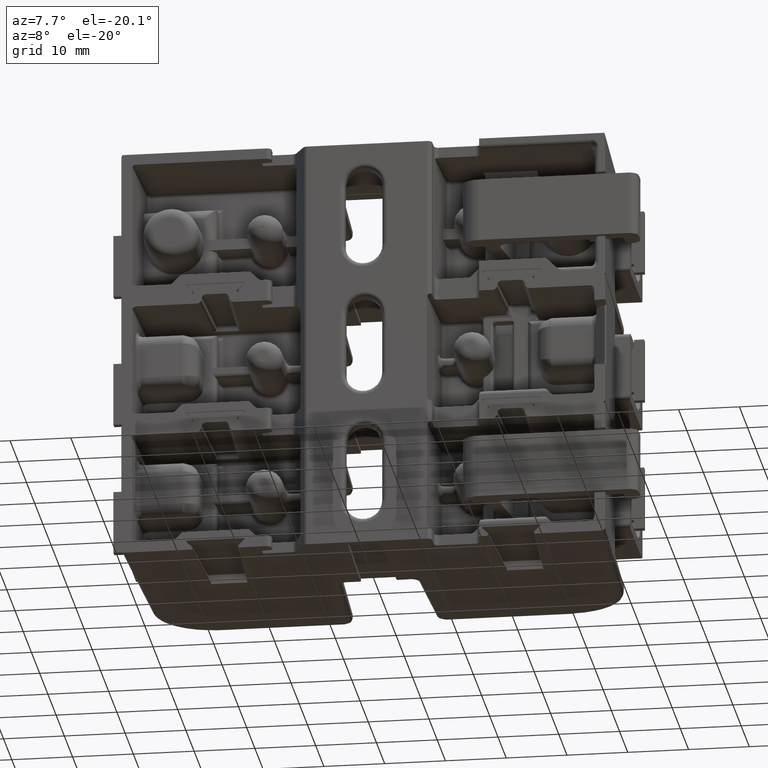
[diagram: clean part render]
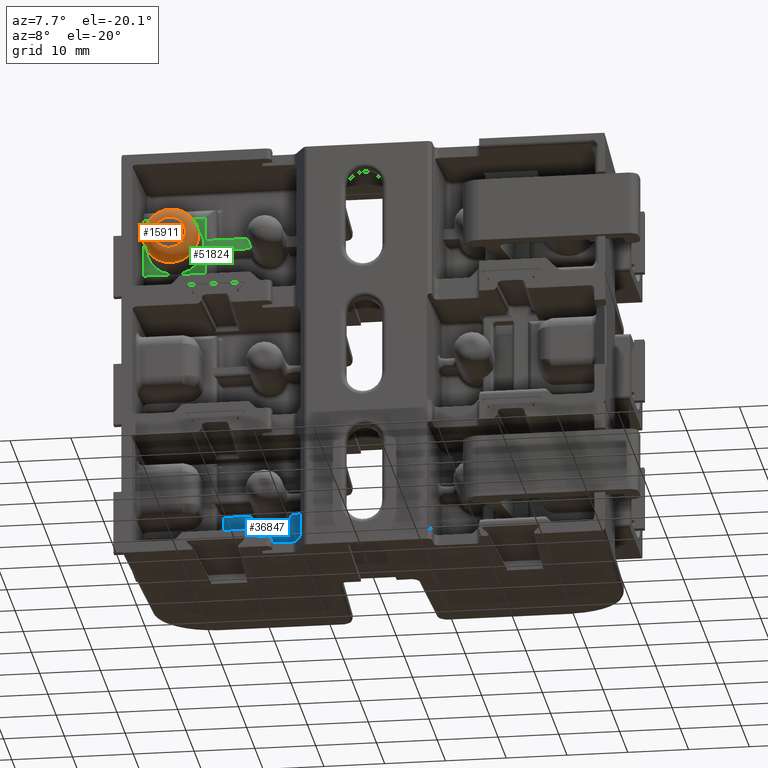
[diagram: same view with three faces highlighted in distinct colors, each labeled with its STEP entity id]
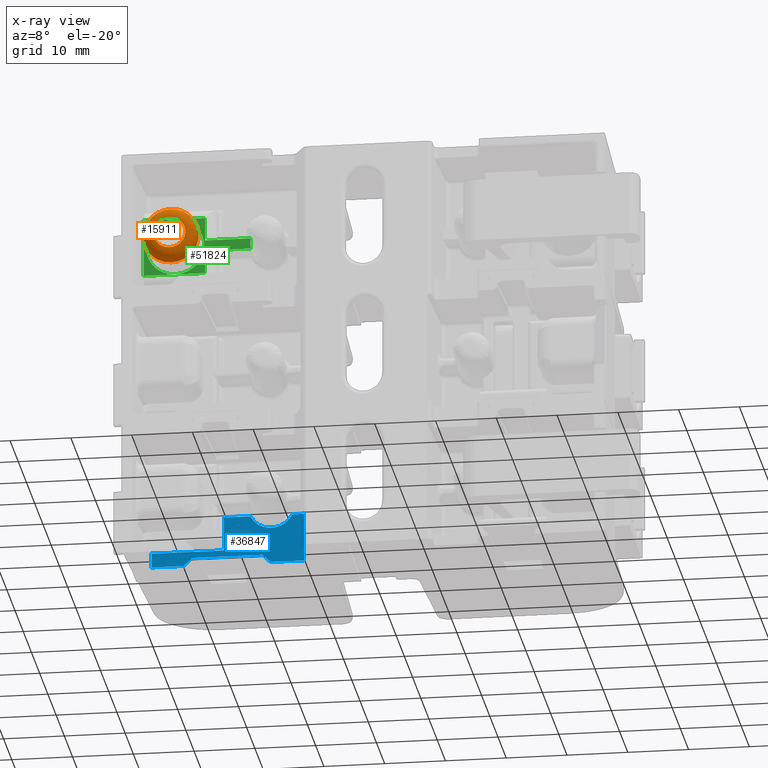
[diagram: x-ray of the same camera — body ghosted, the three highlighted faces saturated]
A machine part, auxiliary view with three faces highlighted in distinct colors.
The next image is the same camera in x-ray (body ghosted, the three faces saturated) — at least one of them is partly hidden behind the body in this view.
Their STEP definitions:

[orange] entity #15911 — the highlighted toroidal blend (fillet) surface has major radius 2.6279 mm and minor (blend) radius 1.9558 mm.
#4310 = VERTEX_POINT ( 'NONE', #10485 ) ;
#5301 = EDGE_LOOP ( 'NONE', ( #20679 ) ) ;
#10485 = CARTESIAN_POINT ( 'NONE',  ( -1.276500000000000000, 0.1550000000000000000, -0.1034623631186609900 ) ) ;
#11961 = EDGE_CURVE ( 'NONE', #39591, #39591, #139369, .T. ) ;
#15362 = FACE_OUTER_BOUND ( 'NONE', #5301, .T. ) ;
#15911 = ADVANCED_FACE ( 'NONE', ( #15362, #135718 ), #91410, .T. ) ;
#20679 = ORIENTED_EDGE ( 'NONE', *, *, #63379, .F. ) ;
#39591 = VERTEX_POINT ( 'NONE', #61374 ) ;
#40723 = DIRECTION ( 'NONE',  ( -0.0000000000000000000, 1.000000000000000000, -0.0000000000000000000 ) ) ;
#46040 = DIRECTION ( 'NONE',  ( 0.0000000000000000000, -1.000000000000000000, 0.0000000000000000000 ) ) ;
#54492 = CARTESIAN_POINT ( 'NONE',  ( -1.276500000000000000, 0.2319999999999999800, 3.414809992080329000E-017 ) ) ;
#61374 = CARTESIAN_POINT ( 'NONE',  ( -1.276500000000000000, 0.2293127387539074500, -0.1804154567991313500 ) ) ;
#63379 = EDGE_CURVE ( 'NONE', #4310, #4310, #68133, .T. ) ;
#67905 = ORIENTED_EDGE ( 'NONE', *, *, #11961, .F. ) ;
#68133 = CIRCLE ( 'NONE', #140704, 0.1034623631186610300 ) ;
#68909 = EDGE_LOOP ( 'NONE', ( #67905 ) ) ;
#77725 = DIRECTION ( 'NONE',  ( 0.0000000000000000000, 0.0000000000000000000, -1.000000000000000000 ) ) ;
#91410 = TOROIDAL_SURFACE ( 'NONE', #110239, 0.1034623631186610300, 0.07699999999999998500 ) ;
#108609 = CARTESIAN_POINT ( 'NONE',  ( -1.276500000000000000, 0.2293127387539074500, 3.414809992080329000E-017 ) ) ;
#110239 = AXIS2_PLACEMENT_3D ( 'NONE', #54492, #145548, #77725 ) ;
#113958 = CARTESIAN_POINT ( 'NONE',  ( -1.276500000000000000, 0.1550000000000000000, 3.414809992080329000E-017 ) ) ;
#119966 = DIRECTION ( 'NONE',  ( 0.0000000000000000000, 0.0000000000000000000, -1.000000000000000000 ) ) ;
#125263 = DIRECTION ( 'NONE',  ( 0.0000000000000000000, 0.0000000000000000000, -1.000000000000000000 ) ) ;
#135718 = FACE_OUTER_BOUND ( 'NONE', #68909, .T. ) ;
#135948 = AXIS2_PLACEMENT_3D ( 'NONE', #108609, #40723, #119966 ) ;
#139369 = CIRCLE ( 'NONE', #135948, 0.1804154567991313700 ) ;
#140704 = AXIS2_PLACEMENT_3D ( 'NONE', #113958, #46040, #125263 ) ;
#145548 = DIRECTION ( 'NONE',  ( 0.0000000000000000000, -1.000000000000000000, 0.0000000000000000000 ) ) ;

[blue] entity #36847 — the highlighted planar face has unit normal (0, 1, 0).
#174 = LINE ( 'NONE', #125862, #117012 ) ;
#1980 = ORIENTED_EDGE ( 'NONE', *, *, #107957, .T. ) ;
#5154 = VERTEX_POINT ( 'NONE', #103558 ) ;
#5723 = LINE ( 'NONE', #104663, #9285 ) ;
#6226 = AXIS2_PLACEMENT_3D ( 'NONE', #91758, #24003, #103199 ) ;
#7525 = LINE ( 'NONE', #42583, #64077 ) ;
#7534 = EDGE_CURVE ( 'NONE', #24223, #119918, #84776, .T. ) ;
#8027 = VECTOR ( 'NONE', #51499, 39.37007874015748900 ) ;
#8367 = ORIENTED_EDGE ( 'NONE', *, *, #28307, .T. ) ;
#8763 = DIRECTION ( 'NONE',  ( 0.7071067811865511300, -0.0000000000000000000, -0.7071067811865438000 ) ) ;
#9285 = VECTOR ( 'NONE', #116113, 39.37007874015748100 ) ;
#9534 = CARTESIAN_POINT ( 'NONE',  ( -1.447494528120847100, 0.5700000000000000600, -2.040499999999999800 ) ) ;
#10395 = EDGE_CURVE ( 'NONE', #145373, #24223, #117214, .T. ) ;
#11887 = LINE ( 'NONE', #44234, #41943 ) ;
#12002 = CARTESIAN_POINT ( 'NONE',  ( -1.447581830044576400, 0.5700000000000000600, -2.040501522932451900 ) ) ;
#15864 = VERTEX_POINT ( 'NONE', #9534 ) ;
#15942 = CARTESIAN_POINT ( 'NONE',  ( -0.9790000000000004300, 0.5700000000000000600, -1.814999999999999700 ) ) ;
#23098 = CARTESIAN_POINT ( 'NONE',  ( -0.6780735931288075500, 0.5700000000000000600, -2.133999999999999900 ) ) ;
#24003 = DIRECTION ( 'NONE',  ( 0.0000000000000000000, 1.000000000000000000, 0.0000000000000000000 ) ) ;
#24223 = VERTEX_POINT ( 'NONE', #130828 ) ;
#24448 = DIRECTION ( 'NONE',  ( -1.000000000000000000, 0.0000000000000000000, -0.0000000000000000000 ) ) ;
#24678 = DIRECTION ( 'NONE',  ( 1.000000000000000000, -0.0000000000000000000, 0.0000000000000000000 ) ) ;
#28307 = EDGE_CURVE ( 'NONE', #44278, #144642, #174, .T. ) ;
#30354 = VECTOR ( 'NONE', #46167, 39.37007874015748100 ) ;
#31467 = CARTESIAN_POINT ( 'NONE',  ( -0.6720000000000002600, 0.5700000000000000600, -1.749999999999999600 ) ) ;
#34873 = PLANE ( 'NONE',  #6226 ) ;
#36847 = ADVANCED_FACE ( 'NONE', ( #126125 ), #34873, .F. ) ;
#39892 = CARTESIAN_POINT ( 'NONE',  ( -1.185926406871193400, 0.5700000000000000600, -2.081999999999999900 ) ) ;
#41943 = VECTOR ( 'NONE', #55570, 39.37007874015748100 ) ;
#42583 = CARTESIAN_POINT ( 'NONE',  ( -1.009000000000000300, 0.5700000000000000600, -1.814999999999999700 ) ) ;
#42861 = DIRECTION ( 'NONE',  ( 0.0000000000000000000, 0.0000000000000000000, 1.000000000000000000 ) ) ;
#44234 = CARTESIAN_POINT ( 'NONE',  ( -1.566500000000000400, 0.5700000000000000600, -2.040499999999999800 ) ) ;
#44278 = VERTEX_POINT ( 'NONE', #115584 ) ;
#44330 = ORIENTED_EDGE ( 'NONE', *, *, #114232, .T. ) ;
#44557 = EDGE_CURVE ( 'NONE', #15864, #65699, #134707, .T. ) ;
#46167 = DIRECTION ( 'NONE',  ( 1.000000000000000000, -0.0000000000000000000, -0.0000000000000000000 ) ) ;
#51499 = DIRECTION ( 'NONE',  ( 0.7071067811865455700, -0.0000000000000000000, 0.7071067811865493500 ) ) ;
#55570 = DIRECTION ( 'NONE',  ( -1.000000000000000000, 0.0000000000000000000, 0.0000000000000000000 ) ) ;
#60783 = EDGE_LOOP ( 'NONE', ( #105696, #83499, #1980, #120088, #129181, #145521, #101875, #111124, #92720, #8367, #44330, #145826, #93700 ) ) ;
#61382 = VERTEX_POINT ( 'NONE', #68253 ) ;
#64077 = VECTOR ( 'NONE', #133084, 39.37007874015748100 ) ;
#65699 = VERTEX_POINT ( 'NONE', #74228 ) ;
#68253 = CARTESIAN_POINT ( 'NONE',  ( -1.447581830044576400, 0.5700000000000000600, -2.133999999999999900 ) ) ;
#71450 = EDGE_CURVE ( 'NONE', #93870, #145373, #94801, .T. ) ;
#72255 = EDGE_CURVE ( 'NONE', #89449, #44278, #104886, .T. ) ;
#72310 = CARTESIAN_POINT ( 'NONE',  ( -0.9790000000000003100, 0.5700000000000000600, -1.359000000000000000 ) ) ;
#74228 = CARTESIAN_POINT ( 'NONE',  ( -1.447581830044576400, 0.5700000000000000600, -2.040501522932451900 ) ) ;
#78504 = CARTESIAN_POINT ( 'NONE',  ( -0.4608755018545087600, 0.5700000000000000600, -1.784999999999999700 ) ) ;
#79707 = CARTESIAN_POINT ( 'NONE',  ( -1.447552739746785300, 0.5700000000000001700, -2.040500507695700300 ) ) ;
#81034 = CARTESIAN_POINT ( 'NONE',  ( -0.4120000000000001400, 0.5700000000000000600, -2.133999999999999900 ) ) ;
#82043 = VECTOR ( 'NONE', #124404, 39.37007874015748100 ) ;
#83297 = CARTESIAN_POINT ( 'NONE',  ( -1.237926406871193000, 0.5700000000000000600, -2.133999999999999900 ) ) ;
#83499 = ORIENTED_EDGE ( 'NONE', *, *, #44557, .T. ) ;
#83686 = DIRECTION ( 'NONE',  ( -3.538663204228321000E-016, 0.0000000000000000000, -1.000000000000000000 ) ) ;
#84776 = LINE ( 'NONE', #132886, #111419 ) ;
#85593 = LINE ( 'NONE', #101194, #82043 ) ;
#88406 = EDGE_CURVE ( 'NONE', #124754, #5154, #127861, .T. ) ;
#89449 = VERTEX_POINT ( 'NONE', #140228 ) ;
#90612 = CARTESIAN_POINT ( 'NONE',  ( -1.447523636150463100, 0.5700000000000001700, -2.040500000000000200 ) ) ;
#91758 = CARTESIAN_POINT ( 'NONE',  ( -1.566500000000000400, 0.5700000000000000600, -1.359000000000000000 ) ) ;
#92720 = ORIENTED_EDGE ( 'NONE', *, *, #72255, .T. ) ;
#93700 = ORIENTED_EDGE ( 'NONE', *, *, #88406, .T. ) ;
#93870 = VERTEX_POINT ( 'NONE', #83297 ) ;
#94801 = LINE ( 'NONE', #119422, #8027 ) ;
#95372 = EDGE_CURVE ( 'NONE', #119918, #89449, #116726, .T. ) ;
#96118 = EDGE_CURVE ( 'NONE', #5154, #15864, #11887, .T. ) ;
#96336 = AXIS2_PLACEMENT_3D ( 'NONE', #31467, #110734, #42861 ) ;
#97752 = VECTOR ( 'NONE', #83686, 39.37007874015748100 ) ;
#101194 = CARTESIAN_POINT ( 'NONE',  ( -0.4120000000000001400, 0.5700000000000000600, -2.133999999999999900 ) ) ;
#101356 = VECTOR ( 'NONE', #112791, 39.37007874015748100 ) ;
#101875 = ORIENTED_EDGE ( 'NONE', *, *, #7534, .T. ) ;
#103199 = DIRECTION ( 'NONE',  ( 0.0000000000000000000, -0.0000000000000000000, 1.000000000000000000 ) ) ;
#103558 = CARTESIAN_POINT ( 'NONE',  ( -0.9790000000000005400, 0.5700000000000000600, -2.040499999999999800 ) ) ;
#104663 = CARTESIAN_POINT ( 'NONE',  ( -1.447581830044576400, 0.5700000000000000600, -1.359000000000000000 ) ) ;
#104886 = LINE ( 'NONE', #78504, #101356 ) ;
#105696 = ORIENTED_EDGE ( 'NONE', *, *, #96118, .T. ) ;
#107957 = EDGE_CURVE ( 'NONE', #65699, #61382, #5723, .T. ) ;
#110734 = DIRECTION ( 'NONE',  ( 0.0000000000000000000, 1.000000000000000000, 0.0000000000000000000 ) ) ;
#111124 = ORIENTED_EDGE ( 'NONE', *, *, #95372, .T. ) ;
#111419 = VECTOR ( 'NONE', #8763, 39.37007874015748900 ) ;
#111832 = EDGE_CURVE ( 'NONE', #61382, #93870, #85593, .T. ) ;
#112791 = DIRECTION ( 'NONE',  ( -0.0000000000000000000, -0.0000000000000000000, 1.000000000000000000 ) ) ;
#113972 = CARTESIAN_POINT ( 'NONE',  ( -0.5362603595113056800, 0.5700000000000000600, -1.814999999999999700 ) ) ;
#114074 = CARTESIAN_POINT ( 'NONE',  ( -1.566500000000000400, 0.5700000000000000600, -2.081999999999999900 ) ) ;
#114232 = EDGE_CURVE ( 'NONE', #144642, #146103, #136481, .T. ) ;
#115584 = CARTESIAN_POINT ( 'NONE',  ( -0.4608755018545087600, 0.5700000000000000600, -1.814999999999999700 ) ) ;
#116113 = DIRECTION ( 'NONE',  ( -0.0000000000000000000, -0.0000000000000000000, -1.000000000000000000 ) ) ;
#116726 = LINE ( 'NONE', #81034, #143127 ) ;
#117012 = VECTOR ( 'NONE', #24448, 39.37007874015748100 ) ;
#117214 = LINE ( 'NONE', #114074, #30354 ) ;
#119422 = CARTESIAN_POINT ( 'NONE',  ( -1.014713203435595900, 0.5700000000000000600, -1.910786796564401200 ) ) ;
#119918 = VERTEX_POINT ( 'NONE', #23098 ) ;
#120088 = ORIENTED_EDGE ( 'NONE', *, *, #111832, .T. ) ;
#124332 = CARTESIAN_POINT ( 'NONE',  ( -0.8077396404886947300, 0.5700000000000000600, -1.814999999999999700 ) ) ;
#124404 = DIRECTION ( 'NONE',  ( 1.000000000000000000, -0.0000000000000000000, 0.0000000000000000000 ) ) ;
#124754 = VERTEX_POINT ( 'NONE', #15942 ) ;
#124810 = CARTESIAN_POINT ( 'NONE',  ( -1.447494528120847100, 0.5700000000000000600, -2.040499999999999800 ) ) ;
#124856 = EDGE_CURVE ( 'NONE', #146103, #124754, #7525, .T. ) ;
#125862 = CARTESIAN_POINT ( 'NONE',  ( -0.5566949697541344600, 0.5700000000000000600, -1.814999999999999700 ) ) ;
#126125 = FACE_OUTER_BOUND ( 'NONE', #60783, .T. ) ;
#127861 = LINE ( 'NONE', #72310, #97752 ) ;
#129181 = ORIENTED_EDGE ( 'NONE', *, *, #71450, .T. ) ;
#130828 = CARTESIAN_POINT ( 'NONE',  ( -0.7300735931288081500, 0.5700000000000000600, -2.081999999999999900 ) ) ;
#132886 = CARTESIAN_POINT ( 'NONE',  ( -1.509786796564408700, 0.5700000000000000600, -1.302286796564407400 ) ) ;
#133084 = DIRECTION ( 'NONE',  ( -1.000000000000000000, 0.0000000000000000000, -0.0000000000000000000 ) ) ;
#134707 =( BOUNDED_CURVE ( )  B_SPLINE_CURVE ( 3, ( #124810, #90612, #79707, #12002 ),
 .UNSPECIFIED., .F., .F. ) 
 B_SPLINE_CURVE_WITH_KNOTS ( ( 4, 4 ),
 ( 1.570796326794896600, 1.605702911834769400 ),
 .UNSPECIFIED. ) 
 CURVE ( )  GEOMETRIC_REPRESENTATION_ITEM ( )  RATIONAL_B_SPLINE_CURVE ( ( 1.000000000000000000, 0.9998984634375942500, 0.9998984634375942500, 1.000000000000000000 ) ) 
 REPRESENTATION_ITEM ( '' )  );
#136481 = CIRCLE ( 'NONE', #96336, 0.1505000000000002200 ) ;
#140228 = CARTESIAN_POINT ( 'NONE',  ( -0.4608755018545087600, 0.5700000000000000600, -2.133999999999999900 ) ) ;
#143127 = VECTOR ( 'NONE', #24678, 39.37007874015748100 ) ;
#144642 = VERTEX_POINT ( 'NONE', #113972 ) ;
#145373 = VERTEX_POINT ( 'NONE', #39892 ) ;
#145521 = ORIENTED_EDGE ( 'NONE', *, *, #10395, .T. ) ;
#145826 = ORIENTED_EDGE ( 'NONE', *, *, #124856, .T. ) ;
#146103 = VERTEX_POINT ( 'NONE', #124332 ) ;

[green] entity #51824 — the highlighted planar face has unit normal (0, -1, 0).
#961 = EDGE_CURVE ( 'NONE', #121173, #121173, #83060, .T. ) ;
#4464 = ORIENTED_EDGE ( 'NONE', *, *, #961, .T. ) ;
#4699 = VERTEX_POINT ( 'NONE', #140220 ) ;
#5209 = VERTEX_POINT ( 'NONE', #41989 ) ;
#8626 = CARTESIAN_POINT ( 'NONE',  ( -1.481266797170171800, 0.4350000000000000000, 0.4840000000000000400 ) ) ;
#9434 = DIRECTION ( 'NONE',  ( 0.0000000000000000000, -1.000000000000000000, 0.0000000000000000000 ) ) ;
#9858 = CARTESIAN_POINT ( 'NONE',  ( -0.6720000000000001500, 0.4350000000000000000, 0.0000000000000000000 ) ) ;
#10783 = CARTESIAN_POINT ( 'NONE',  ( -1.083714303881385900, 0.4350000000000000000, 0.0000000000000000000 ) ) ;
#11034 = DIRECTION ( 'NONE',  ( 1.000000000000000000, 0.0000000000000000000, 1.830102917615410800E-017 ) ) ;
#12369 = CARTESIAN_POINT ( 'NONE',  ( -0.7854369097708991900, 0.4350000000000000000, -0.03499999999999999600 ) ) ;
#13117 = VERTEX_POINT ( 'NONE', #112218 ) ;
#14282 = CARTESIAN_POINT ( 'NONE',  ( 0.0000000000000000000, 0.4350000000000000000, 0.1882856961186140700 ) ) ;
#16254 = ORIENTED_EDGE ( 'NONE', *, *, #128020, .T. ) ;
#17503 = ORIENTED_EDGE ( 'NONE', *, *, #40198, .T. ) ;
#18241 = DIRECTION ( 'NONE',  ( 1.000000000000000000, -0.0000000000000000000, -0.0000000000000000000 ) ) ;
#20452 = LINE ( 'NONE', #8626, #77006 ) ;
#21215 = DIRECTION ( 'NONE',  ( 0.0000000000000000000, 0.0000000000000000000, -1.000000000000000000 ) ) ;
#23931 = CARTESIAN_POINT ( 'NONE',  ( -1.083714303881385900, 0.4350000000000000000, 0.0000000000000000000 ) ) ;
#25897 = VERTEX_POINT ( 'NONE', #91917 ) ;
#26377 = CARTESIAN_POINT ( 'NONE',  ( -1.276500000000000000, 0.4350000000000000000, -0.1875982142364950900 ) ) ;
#26887 = CARTESIAN_POINT ( 'NONE',  ( -1.016116089644890900, 0.4350000000000000000, 0.03500000000000000300 ) ) ;
#27554 = FACE_BOUND ( 'NONE', #145383, .T. ) ;
#28872 = CARTESIAN_POINT ( 'NONE',  ( -1.276500000000000000, 0.4350000000000000000, 3.414809992080329000E-017 ) ) ;
#30037 = CIRCLE ( 'NONE', #85288, 0.1187136575898961500 ) ;
#40198 = EDGE_CURVE ( 'NONE', #64298, #4699, #20452, .T. ) ;
#40263 = DIRECTION ( 'NONE',  ( 0.0000000000000000000, 0.0000000000000000000, -1.000000000000000000 ) ) ;
#41989 = CARTESIAN_POINT ( 'NONE',  ( -0.7854369097708991900, 0.4350000000000000000, 0.03499999999999999600 ) ) ;
#51824 = ADVANCED_FACE ( 'NONE', ( #144374, #27554 ), #88031, .T. ) ;
#53180 = LINE ( 'NONE', #86017, #79705 ) ;
#55164 = AXIS2_PLACEMENT_3D ( 'NONE', #28872, #108158, #40263 ) ;
#57634 = ORIENTED_EDGE ( 'NONE', *, *, #89684, .T. ) ;
#60869 = EDGE_CURVE ( 'NONE', #5209, #72765, #93886, .T. ) ;
#60899 = CARTESIAN_POINT ( 'NONE',  ( -1.083714303881385900, 0.4350000000000000000, 0.03500000000000000300 ) ) ;
#60973 = LINE ( 'NONE', #23931, #121296 ) ;
#61019 = VECTOR ( 'NONE', #82014, 39.37007874015748100 ) ;
#62211 = VECTOR ( 'NONE', #11034, 39.37007874015748100 ) ;
#64123 = ORIENTED_EDGE ( 'NONE', *, *, #146719, .T. ) ;
#64298 = VERTEX_POINT ( 'NONE', #88012 ) ;
#67572 = DIRECTION ( 'NONE',  ( -0.0000000000000000000, -0.0000000000000000000, 1.000000000000000000 ) ) ;
#70087 = EDGE_LOOP ( 'NONE', ( #125496, #57634, #95828, #98137, #64123, #16254, #17503, #109957 ) ) ;
#72355 = AXIS2_PLACEMENT_3D ( 'NONE', #77112, #9434, #88507 ) ;
#72400 = VECTOR ( 'NONE', #67572, 39.37007874015748100 ) ;
#72765 = VERTEX_POINT ( 'NONE', #60899 ) ;
#76292 = DIRECTION ( 'NONE',  ( -0.0000000000000000000, -0.0000000000000000000, -1.000000000000000000 ) ) ;
#76378 = EDGE_CURVE ( 'NONE', #4699, #13117, #53180, .T. ) ;
#77006 = VECTOR ( 'NONE', #76292, 39.37007874015748100 ) ;
#77112 = CARTESIAN_POINT ( 'NONE',  ( 0.0000000000000000000, 0.4350000000000000000, 0.0000000000000000000 ) ) ;
#79705 = VECTOR ( 'NONE', #18241, 39.37007874015748100 ) ;
#82014 = DIRECTION ( 'NONE',  ( -1.000000000000000000, -0.0000000000000000000, -0.0000000000000000000 ) ) ;
#83060 = CIRCLE ( 'NONE', #55164, 0.1875982142364951100 ) ;
#85288 = AXIS2_PLACEMENT_3D ( 'NONE', #9858, #88940, #21215 ) ;
#86017 = CARTESIAN_POINT ( 'NONE',  ( 0.0000000000000000000, 0.4350000000000000000, -0.1882856961186140700 ) ) ;
#86573 = EDGE_CURVE ( 'NONE', #13117, #143198, #102581, .T. ) ;
#88012 = CARTESIAN_POINT ( 'NONE',  ( -1.481266797170171800, 0.4350000000000000000, 0.1882856961186141200 ) ) ;
#88031 = PLANE ( 'NONE',  #72355 ) ;
#88507 = DIRECTION ( 'NONE',  ( 0.0000000000000000000, -0.0000000000000000000, -1.000000000000000000 ) ) ;
#88940 = DIRECTION ( 'NONE',  ( -0.0000000000000000000, 1.000000000000000000, -0.0000000000000000000 ) ) ;
#89684 = EDGE_CURVE ( 'NONE', #143198, #96636, #122562, .T. ) ;
#90682 = DIRECTION ( 'NONE',  ( -0.0000000000000000000, -0.0000000000000000000, 1.000000000000000000 ) ) ;
#91917 = CARTESIAN_POINT ( 'NONE',  ( -1.083714303881385900, 0.4350000000000000000, 0.1882856961186140700 ) ) ;
#93886 = LINE ( 'NONE', #26887, #123986 ) ;
#94693 = DIRECTION ( 'NONE',  ( -1.000000000000000000, -0.0000000000000000000, 1.830102917615410800E-017 ) ) ;
#95828 = ORIENTED_EDGE ( 'NONE', *, *, #135406, .T. ) ;
#96636 = VERTEX_POINT ( 'NONE', #12369 ) ;
#98137 = ORIENTED_EDGE ( 'NONE', *, *, #60869, .T. ) ;
#102581 = LINE ( 'NONE', #10783, #72400 ) ;
#108158 = DIRECTION ( 'NONE',  ( -0.0000000000000000000, 1.000000000000000000, -0.0000000000000000000 ) ) ;
#109957 = ORIENTED_EDGE ( 'NONE', *, *, #76378, .T. ) ;
#111675 = CARTESIAN_POINT ( 'NONE',  ( -1.083714303881385900, 0.4350000000000000000, -0.03500000000000000300 ) ) ;
#112218 = CARTESIAN_POINT ( 'NONE',  ( -1.083714303881385900, 0.4350000000000000000, -0.1882856961186140700 ) ) ;
#121173 = VERTEX_POINT ( 'NONE', #26377 ) ;
#121296 = VECTOR ( 'NONE', #90682, 39.37007874015748100 ) ;
#121344 = LINE ( 'NONE', #14282, #61019 ) ;
#122562 = LINE ( 'NONE', #146579, #62211 ) ;
#123986 = VECTOR ( 'NONE', #94693, 39.37007874015748100 ) ;
#125496 = ORIENTED_EDGE ( 'NONE', *, *, #86573, .T. ) ;
#128020 = EDGE_CURVE ( 'NONE', #25897, #64298, #121344, .T. ) ;
#135406 = EDGE_CURVE ( 'NONE', #96636, #5209, #30037, .T. ) ;
#140220 = CARTESIAN_POINT ( 'NONE',  ( -1.481266797170171800, 0.4350000000000000000, -0.1882856961186137900 ) ) ;
#143198 = VERTEX_POINT ( 'NONE', #111675 ) ;
#144374 = FACE_OUTER_BOUND ( 'NONE', #70087, .T. ) ;
#145383 = EDGE_LOOP ( 'NONE', ( #4464 ) ) ;
#146579 = CARTESIAN_POINT ( 'NONE',  ( -1.016116089644890900, 0.4350000000000000000, -0.03500000000000000300 ) ) ;
#146719 = EDGE_CURVE ( 'NONE', #72765, #25897, #60973, .T. ) ;